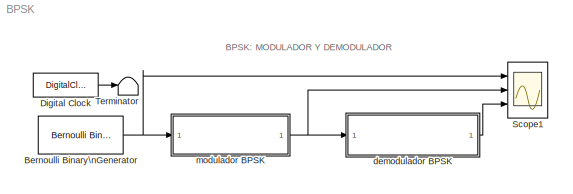
MODEL BPSK
KIND model
BLOCK [Reference] Bernoulli Binary\nGenerator  REF=commrandsrc2/Bernoulli Binary\nGenerator
  DialogController = commDDGCreate
  DialogControllerArgs = DataTag0
  FunctionWithSeparateData = off
  P = 0.5
  Ports = [0, 1]
  RTWMemSecDataConstants = Inherit from model
  RTWMemSecDataInternal = Inherit from model
  RTWMemSecDataParameters = Inherit from model
  RTWMemSecFuncExecute = Inherit from model
  RTWMemSecFuncInitTerm = Inherit from model
  ShowPortLabels = FromPortIcon
  SourceBlock = commrandsrc2/Bernoulli Binary\nGenerator
  SourceType = Bernoulli Binary Generator
  SystemSampleTime = -1
  Ts = 5
  frameBased = off
  orient = off
  outDataType = double
  sampPerFrame = 1
  seed = 51
BLOCK [DigitalClock] Digital Clock
  SampleTime = 0.001
BLOCK [Scope] Scope1
  DataFormat = StructureWithTime
  Floating = off
  NumInputPorts = 3
  Ports = [3]
  SampleTime = 0
  SaveName = ScopeData3
  YMax = 5~5~5
  YMin = -5~-5~-5
BLOCK [Terminator] Terminator
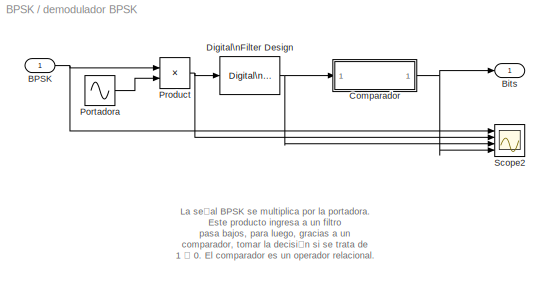
BLOCK [SubSystem] demodulador BPSK
  FunctionWithSeparateData = off
  MaskHideContents = off
  MinAlgLoopOccurrences = off
  Opaque = off
  Ports = [1, 1]
  PropExecContextOutsideSubsystem = off
  RTWSystemCode = Auto
  RequestExecContextInheritance = off
BLOCK [Inport] demodulador BPSK/BPSK
  IconDisplay = Port number
  OutDataType = sfix(16)
  OutScaling = 2^0
BLOCK [Outport] demodulador BPSK/Bits
  IconDisplay = Port number
  OutDataType = sfix(16)
  OutScaling = 2^0
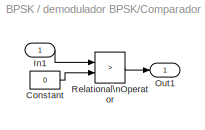
BLOCK [SubSystem] demodulador BPSK/Comparador
  FunctionWithSeparateData = off
  MaskHideContents = off
  MinAlgLoopOccurrences = off
  Opaque = off
  Ports = [1, 1]
  PropExecContextOutsideSubsystem = off
  RTWSystemCode = Auto
  RequestExecContextInheritance = off
BLOCK [Constant] demodulador BPSK/Comparador/Constant
  OutDataType = sfix(16)
  OutScaling = 2^0
  Value = 0
BLOCK [Inport] demodulador BPSK/Comparador/In1
  IconDisplay = Port number
  OutDataType = sfix(16)
  OutScaling = 2^0
BLOCK [Outport] demodulador BPSK/Comparador/Out1
  IconDisplay = Port number
  OutDataType = sfix(16)
  OutScaling = 2^0
BLOCK [RelationalOperator] demodulador BPSK/Comparador/Relational\nOperator
  InputSameDT = off
  LogicOutDataTypeMode = boolean
  Operator = >
  OutDataTypeStr = boolean
BLOCK [Reference] demodulador BPSK/Digital\nFilter Design  REF=dsparch4/Digital\nFilter Design
  FunctionWithSeparateData = off
  Ports = [1, 1]
  RTWMemSecDataConstants = Inherit from model
  RTWMemSecDataInternal = Inherit from model
  RTWMemSecDataParameters = Inherit from model
  RTWMemSecFuncExecute = Inherit from model
  RTWMemSecFuncInitTerm = Inherit from model
  ShowPortLabels = FromPortIcon
  SourceBlock = dsparch4/Digital\nFilter Design
  SourceType = Digital Filter Design
  SystemSampleTime = -1
  UserData = DataTag1
  UserDataPersistent = on
  mwdsp_browser_bugfix_var = off
BLOCK [Sin] demodulador BPSK/Portadora
  Frequency = 2*10*pi
  Ports = [0, 1]
  SampleTime = 1/20
  Samples = 50
  SineType = Sample based
BLOCK [Product] demodulador BPSK/Product
  InputSameDT = off
  OutDataType = sfix(16)
  OutDataTypeMode = Inherit via internal rule
  OutDataTypeStr = Inherit: Inherit via internal rule
  OutScaling = 2^0
  Ports = [2, 1]
  SaturateOnIntegerOverflow = off
BLOCK [Scope] demodulador BPSK/Scope2
  DataFormat = StructureWithTime
  Floating = off
  NumInputPorts = 4
  Ports = [4]
  SampleTime = 0
  YMax = 2~3~3~5
  YMin = -2~-3~-3~-5
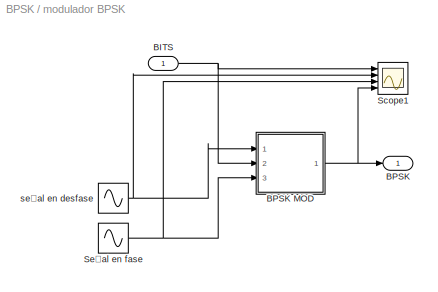
BLOCK [SubSystem] modulador BPSK
  FunctionWithSeparateData = off
  MaskHideContents = off
  MinAlgLoopOccurrences = off
  Opaque = off
  Ports = [1, 1]
  PropExecContextOutsideSubsystem = off
  RTWSystemCode = Auto
  RequestExecContextInheritance = off
BLOCK [Inport] modulador BPSK/BITS
  IconDisplay = Port number
  OutDataType = sfix(16)
  OutScaling = 2^0
BLOCK [Outport] modulador BPSK/BPSK
  IconDisplay = Port number
  OutDataType = sfix(16)
  OutScaling = 2^0
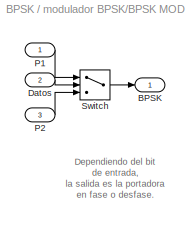
BLOCK [SubSystem] modulador BPSK/BPSK MOD
  FunctionWithSeparateData = off
  MaskHideContents = off
  MinAlgLoopOccurrences = off
  Opaque = off
  Ports = [3, 1]
  PropExecContextOutsideSubsystem = off
  RTWSystemCode = Auto
  RequestExecContextInheritance = off
BLOCK [Outport] modulador BPSK/BPSK MOD/BPSK
  IconDisplay = Port number
  OutDataType = sfix(16)
  OutScaling = 2^0
BLOCK [Inport] modulador BPSK/BPSK MOD/Datos
  IconDisplay = Port number
  OutDataType = sfix(16)
  OutScaling = 2^0
  Port = 2
BLOCK [Inport] modulador BPSK/BPSK MOD/P1
  IconDisplay = Port number
  OutDataType = sfix(16)
  OutScaling = 2^0
BLOCK [Inport] modulador BPSK/BPSK MOD/P2
  IconDisplay = Port number
  OutDataType = sfix(16)
  OutScaling = 2^0
  Port = 3
BLOCK [Switch] modulador BPSK/BPSK MOD/Switch
  InputSameDT = off
  SaturateOnIntegerOverflow = off
  Threshold = 0.5
BLOCK [Scope] modulador BPSK/Scope1
  DataFormat = StructureWithTime
  Floating = off
  NumInputPorts = 4
  Ports = [4]
  SampleTime = 0
  SaveName = ScopeData1
  YMax = 2~3~3~3
  YMin = -2~-3~-3~-3
BLOCK [Sin] modulador BPSK/Señal en fase
  Frequency = 2*10*pi
  Offset = 25
  Phase = -pi
  Ports = [0, 1]
  SampleTime = 1/20
  Samples = 50
  SineType = Sample based
BLOCK [Sin] modulador BPSK/señal en desfase
  Frequency = 2*10*pi
  Ports = [0, 1]
  SampleTime = 1/20
  Samples = 50
  SineType = Sample based
ANNOTATION (root): BPSK: MODULADOR Y DEMODULADOR
ANNOTATION demodulador BPSK: La señal BPSK se multiplica por la portadora.\nEste producto ingresa a un filtro\npasa bajos, para luego, gracias a un \ncomparador, tomar la decisión si se trata de\n1 ó 0. El comparador es un operador relacional.
ANNOTATION modulador BPSK/BPSK MOD: Dependiendo del bit\nde entrada,\nla salida es la portadora\nen fase o desfase.
NET Bernoulli Binary\nGenerator:1 -> Scope1:1, modulador BPSK:1
LINE Digital Clock:1 -> Terminator:1
NET demodulador BPSK/BPSK:1 -> demodulador BPSK/Product:1, demodulador BPSK/Scope2:1
LINE demodulador BPSK/Comparador/Constant:1 -> demodulador BPSK/Comparador/Relational\nOperator:2
LINE demodulador BPSK/Comparador/In1:1 -> demodulador BPSK/Comparador/Relational\nOperator:1
LINE demodulador BPSK/Comparador/Relational\nOperator:1 -> demodulador BPSK/Comparador/Out1:1
NET demodulador BPSK/Comparador:1 -> demodulador BPSK/Bits:1, demodulador BPSK/Scope2:4
NET demodulador BPSK/Digital\nFilter Design:1 -> demodulador BPSK/Comparador:1, demodulador BPSK/Scope2:3
LINE demodulador BPSK/Portadora:1 -> demodulador BPSK/Product:2
NET demodulador BPSK/Product:1 -> demodulador BPSK/Digital\nFilter Design:1, demodulador BPSK/Scope2:2
LINE demodulador BPSK:1 -> Scope1:3
NET modulador BPSK/BITS:1 -> modulador BPSK/BPSK MOD:2, modulador BPSK/Scope1:1
LINE modulador BPSK/BPSK MOD/Datos:1 -> modulador BPSK/BPSK MOD/Switch:2
LINE modulador BPSK/BPSK MOD/P1:1 -> modulador BPSK/BPSK MOD/Switch:1
LINE modulador BPSK/BPSK MOD/P2:1 -> modulador BPSK/BPSK MOD/Switch:3
LINE modulador BPSK/BPSK MOD/Switch:1 -> modulador BPSK/BPSK MOD/BPSK:1
NET modulador BPSK/BPSK MOD:1 -> modulador BPSK/BPSK:1, modulador BPSK/Scope1:4
NET modulador BPSK/Señal en fase:1 -> modulador BPSK/BPSK MOD:3, modulador BPSK/Scope1:3
NET modulador BPSK/señal en desfase:1 -> modulador BPSK/BPSK MOD:1, modulador BPSK/Scope1:2
NET modulador BPSK:1 -> Scope1:2, demodulador BPSK:1
note: NET lines group one-source signal fan-out (src -> all destinations, sorted); 1:1 wires keep LINE
